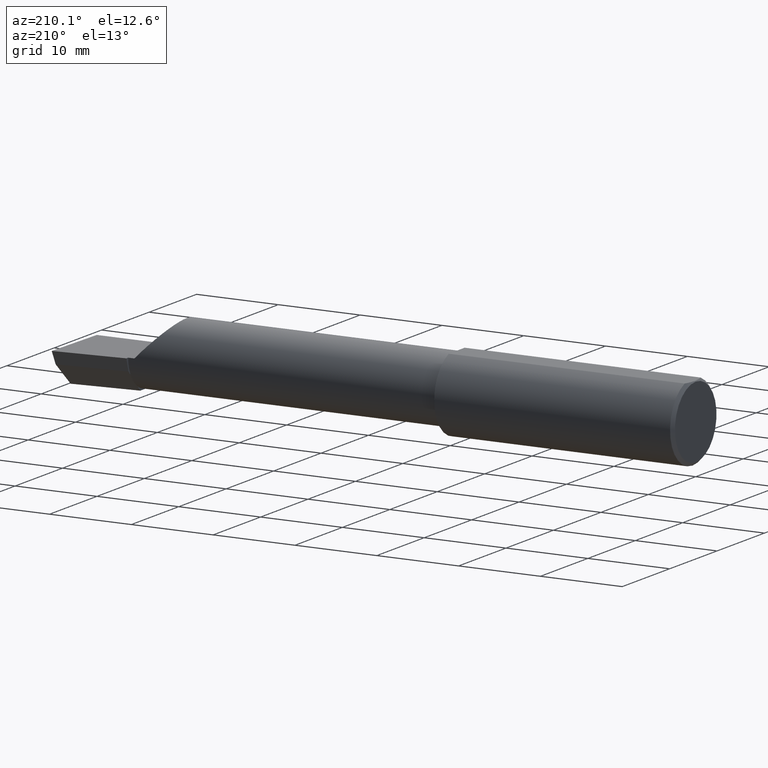
[diagram: clean part render]
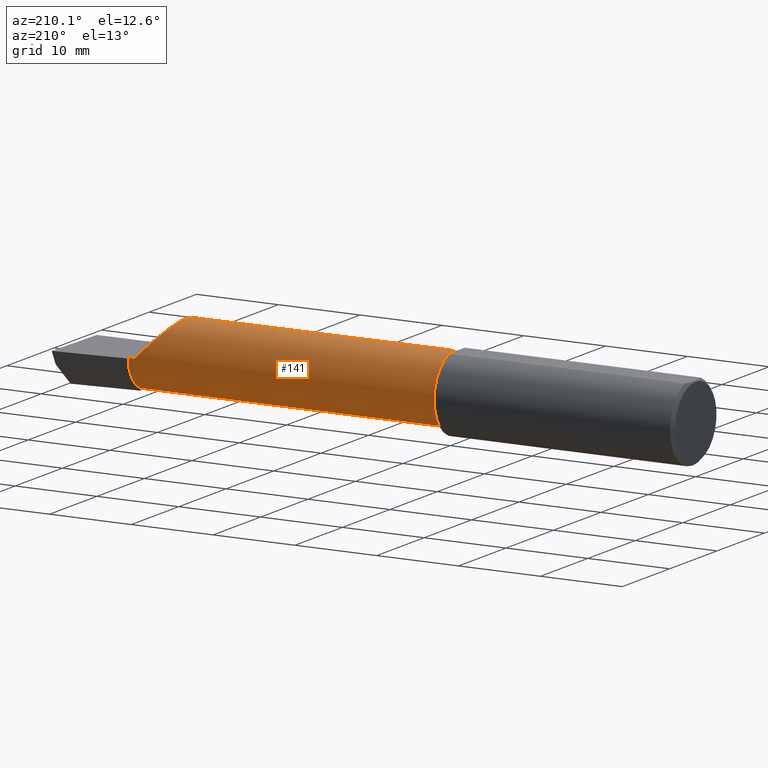
[diagram: same view with one face highlighted and labeled with its STEP entity id]
A machine part, auxiliary view. The second image highlights one B-rep face of the part: STEP entity #141.
In plain terms, the highlighted cylindrical surface (partial cylindrical patch) has radius 4.0653 mm, axis along (-1, 0, -0).
Its self-contained STEP definition (entity closure, byte-faithful):
#5 = CYLINDRICAL_SURFACE ( 'NONE', #334, 0.1600499999999999146 ) ;
#6 = CARTESIAN_POINT ( 'NONE',  ( 2.659999999999999698, -0.03740000000000000269, 0.0000000000000000000 ) ) ;
#7 = CARTESIAN_POINT ( 'NONE',  ( 9.109005653874777379E-19, 0.1226499999999998841, 3.563723795045361633E-16 ) ) ;
#12 = VERTEX_POINT ( 'NONE', #158 ) ;
#16 = VERTEX_POINT ( 'NONE', #198 ) ;
#17 = EDGE_CURVE ( 'NONE', #322, #478, #63, .T. ) ;
#18 = CARTESIAN_POINT ( 'NONE',  ( 2.660000000000000142, -0.03740000000000000269, 0.0000000000000000000 ) ) ;
#19 = LINE ( 'NONE', #389, #20 ) ;
#20 = VECTOR ( 'NONE', #466, 39.37007874015748143 ) ;
#23 = ORIENTED_EDGE ( 'NONE', *, *, #34, .T. ) ;
#31 = CARTESIAN_POINT ( 'NONE',  ( 1.160000000000000142, -0.1454917112299473902, 0.1180346748349042768 ) ) ;
#33 = CIRCLE ( 'NONE', #126, 0.1600499999999997758 ) ;
#34 = EDGE_CURVE ( 'NONE', #259, #329, #113, .T. ) ;
#40 = DIRECTION ( 'NONE',  ( 0.0000000000000000000, -1.000000000000000000, 0.0000000000000000000 ) ) ;
#43 = CARTESIAN_POINT ( 'NONE',  ( 2.977223734188808368, -0.1454917112299468074, -0.1180346748349050540 ) ) ;
#44 = ORIENTED_EDGE ( 'NONE', *, *, #317, .F. ) ;
#57 =( BOUNDED_CURVE ( )  B_SPLINE_CURVE ( 3, ( #43, #587, #549, #282 ),
 .UNSPECIFIED., .F., .F. ) 
 B_SPLINE_CURVE_WITH_KNOTS ( ( 4, 4 ),
 ( 5.751779107031517846, 6.493234751459720400 ),
 .UNSPECIFIED. ) 
 CURVE ( )  GEOMETRIC_REPRESENTATION_ITEM ( )  RATIONAL_B_SPLINE_CURVE ( ( 1.000000000000000000, 0.9547092712975350226, 0.9547092712975350226, 1.000000000000000000 ) ) 
 REPRESENTATION_ITEM ( '' )  );
#63 = LINE ( 'NONE', #219, #139 ) ;
#81 = VECTOR ( 'NONE', #312, 39.37007874015748143 ) ;
#86 = ORIENTED_EDGE ( 'NONE', *, *, #17, .T. ) ;
#105 = ORIENTED_EDGE ( 'NONE', *, *, #364, .T. ) ;
#106 = ORIENTED_EDGE ( 'NONE', *, *, #236, .F. ) ;
#107 = CARTESIAN_POINT ( 'NONE',  ( 2.511965325165093521, -0.1454917112299465853, 0.1180346748349052760 ) ) ;
#113 = LINE ( 'NONE', #326, #81 ) ;
#126 = AXIS2_PLACEMENT_3D ( 'NONE', #333, #589, #40 ) ;
#129 = VERTEX_POINT ( 'NONE', #454 ) ;
#139 = VECTOR ( 'NONE', #230, 39.37007874015748143 ) ;
#141 = ADVANCED_FACE ( 'NONE', ( #435 ), #5, .T. ) ;
#149 = EDGE_CURVE ( 'NONE', #297, #12, #384, .T. ) ;
#158 = CARTESIAN_POINT ( 'NONE',  ( 2.659999999999999698, 0.1028057716897401025, -0.07719031082256659626 ) ) ;
#167 = DIRECTION ( 'NONE',  ( -1.000000000000000000, 5.691349986800549142E-18, -0.0000000000000000000 ) ) ;
#171 = CIRCLE ( 'NONE', #544, 0.1600500000000000533 ) ;
#177 = EDGE_CURVE ( 'NONE', #259, #478, #33, .T. ) ;
#178 = CARTESIAN_POINT ( 'NONE',  ( 2.511965325165093521, -0.1454917112299465853, 0.1180346748349052760 ) ) ;
#181 = CARTESIAN_POINT ( 'NONE',  ( 2.659999999999999698, -0.03740000000000000269, -0.1600499999999999701 ) ) ;
#188 = AXIS2_PLACEMENT_3D ( 'NONE', #6, #558, #453 ) ;
#197 = VERTEX_POINT ( 'NONE', #181 ) ;
#198 = CARTESIAN_POINT ( 'NONE',  ( 2.974893613600465336, -0.03740000000000000269, -0.1600499999999999701 ) ) ;
#206 =( BOUNDED_CURVE ( )  B_SPLINE_CURVE ( 3, ( #178, #471, #396, #527 ),
 .UNSPECIFIED., .F., .F. ) 
 B_SPLINE_CURVE_WITH_KNOTS ( ( 4, 4 ),
 ( 5.541729662751385455, 7.853981633974482790 ),
 .UNSPECIFIED. ) 
 CURVE ( )  GEOMETRIC_REPRESENTATION_ITEM ( )  RATIONAL_B_SPLINE_CURVE ( ( 1.000000000000000000, 0.6019254882129718709, 0.6019254882129718709, 1.000000000000000000 ) ) 
 REPRESENTATION_ITEM ( '' )  );
#209 = ORIENTED_EDGE ( 'NONE', *, *, #351, .T. ) ;
#217 = LINE ( 'NONE', #7, #336 ) ;
#219 = CARTESIAN_POINT ( 'NONE',  ( 1.910000000000000142, -0.1454917112299468074, -0.1180346748349050540 ) ) ;
#230 = DIRECTION ( 'NONE',  ( -1.000000000000000000, 5.691349986800549142E-18, -0.0000000000000000000 ) ) ;
#236 = EDGE_CURVE ( 'NONE', #16, #197, #19, .T. ) ;
#259 = VERTEX_POINT ( 'NONE', #31 ) ;
#271 = DIRECTION ( 'NONE',  ( -1.000000000000000000, 5.691349986800549142E-18, -0.0000000000000000000 ) ) ;
#282 = CARTESIAN_POINT ( 'NONE',  ( 2.974893613600465336, -0.03740000000000000269, -0.1600499999999999701 ) ) ;
#289 = EDGE_CURVE ( 'NONE', #329, #129, #206, .T. ) ;
#297 = VERTEX_POINT ( 'NONE', #525 ) ;
#300 = CIRCLE ( 'NONE', #302, 0.1600500000000000533 ) ;
#302 = AXIS2_PLACEMENT_3D ( 'NONE', #18, #167, #500 ) ;
#305 = DIRECTION ( 'NONE',  ( 1.000000000000000000, -5.691349986800549142E-18, 0.0000000000000000000 ) ) ;
#312 = DIRECTION ( 'NONE',  ( 1.000000000000000000, -5.691349986800549142E-18, 0.0000000000000000000 ) ) ;
#317 = EDGE_CURVE ( 'NONE', #322, #16, #57, .T. ) ;
#322 = VERTEX_POINT ( 'NONE', #331 ) ;
#326 = CARTESIAN_POINT ( 'NONE',  ( 1.910000000000000142, -0.1454917112299468074, 0.1180346748349050540 ) ) ;
#327 = CARTESIAN_POINT ( 'NONE',  ( 2.660000000000000142, 0.1226500000000000368, 3.563723795045366070E-16 ) ) ;
#329 = VERTEX_POINT ( 'NONE', #107 ) ;
#331 = CARTESIAN_POINT ( 'NONE',  ( 2.977223734188808368, -0.1454917112299468074, -0.1180346748349050540 ) ) ;
#333 = CARTESIAN_POINT ( 'NONE',  ( 1.160000000000000142, -0.03739999999999999575, 0.0000000000000000000 ) ) ;
#334 = AXIS2_PLACEMENT_3D ( 'NONE', #377, #374, #401 ) ;
#336 = VECTOR ( 'NONE', #305, 39.37007874015748143 ) ;
#343 = ORIENTED_EDGE ( 'NONE', *, *, #530, .T. ) ;
#351 = EDGE_CURVE ( 'NONE', #129, #492, #217, .T. ) ;
#364 = EDGE_CURVE ( 'NONE', #297, #197, #171, .T. ) ;
#374 = DIRECTION ( 'NONE',  ( -1.000000000000000000, 5.691349986800549142E-18, -0.0000000000000000000 ) ) ;
#377 = CARTESIAN_POINT ( 'NONE',  ( 0.0000000000000000000, -0.03739999999999998881, 0.0000000000000000000 ) ) ;
#384 = CIRCLE ( 'NONE', #188, 0.1600499999999999146 ) ;
#389 = CARTESIAN_POINT ( 'NONE',  ( 3.000000000000000444, -0.03740000000000000269, -0.1600499999999999701 ) ) ;
#396 = CARTESIAN_POINT ( 'NONE',  ( 2.467758842172327771, 0.1226499999999999119, 0.1622411578276702349 ) ) ;
#401 = DIRECTION ( 'NONE',  ( -5.691349986800548372E-18, -1.000000000000000000, 0.0000000000000000000 ) ) ;
#419 = ORIENTED_EDGE ( 'NONE', *, *, #289, .T. ) ;
#435 = FACE_OUTER_BOUND ( 'NONE', #465, .T. ) ;
#446 = DIRECTION ( 'NONE',  ( 0.0000000000000000000, -1.000000000000000000, 0.0000000000000000000 ) ) ;
#452 = CARTESIAN_POINT ( 'NONE',  ( 1.160000000000000142, -0.1454917112299473902, -0.1180346748349042768 ) ) ;
#453 = DIRECTION ( 'NONE',  ( 0.0000000000000000000, -1.000000000000000000, 0.0000000000000000000 ) ) ;
#454 = CARTESIAN_POINT ( 'NONE',  ( 2.629999999999999893, 0.1226499999999998147, -1.592040838891560883E-17 ) ) ;
#465 = EDGE_LOOP ( 'NONE', ( #44, #86, #482, #23, #419, #209, #343, #598, #105, #106 ) ) ;
#466 = DIRECTION ( 'NONE',  ( -1.000000000000000000, 5.691349986800548372E-18, -0.0000000000000000000 ) ) ;
#471 = CARTESIAN_POINT ( 'NONE',  ( 2.402393788885675008, -0.02584108761840274437, 0.2276062111143224709 ) ) ;
#478 = VERTEX_POINT ( 'NONE', #452 ) ;
#482 = ORIENTED_EDGE ( 'NONE', *, *, #177, .F. ) ;
#492 = VERTEX_POINT ( 'NONE', #327 ) ;
#496 = CARTESIAN_POINT ( 'NONE',  ( 2.660000000000000142, -0.03740000000000000269, 0.0000000000000000000 ) ) ;
#500 = DIRECTION ( 'NONE',  ( 0.0000000000000000000, -1.000000000000000000, 0.0000000000000000000 ) ) ;
#525 = CARTESIAN_POINT ( 'NONE',  ( 2.659999999999999698, 0.04400172171466189969, -0.1378033461200732501 ) ) ;
#527 = CARTESIAN_POINT ( 'NONE',  ( 2.629999999999999893, 0.1226499999999998147, -1.592040838891560883E-17 ) ) ;
#530 = EDGE_CURVE ( 'NONE', #492, #12, #300, .T. ) ;
#544 = AXIS2_PLACEMENT_3D ( 'NONE', #496, #271, #446 ) ;
#549 = CARTESIAN_POINT ( 'NONE',  ( 2.973833329693935212, -0.07789060880782661123, -0.1600499999999999146 ) ) ;
#558 = DIRECTION ( 'NONE',  ( 1.000000000000000000, -5.691349986800549142E-18, 0.0000000000000000000 ) ) ;
#587 = CARTESIAN_POINT ( 'NONE',  ( 2.974646882977779239, -0.1156304438478839430, -0.1453804992321580114 ) ) ;
#589 = DIRECTION ( 'NONE',  ( -1.000000000000000000, 5.691349986800549142E-18, -0.0000000000000000000 ) ) ;
#598 = ORIENTED_EDGE ( 'NONE', *, *, #149, .F. ) ;